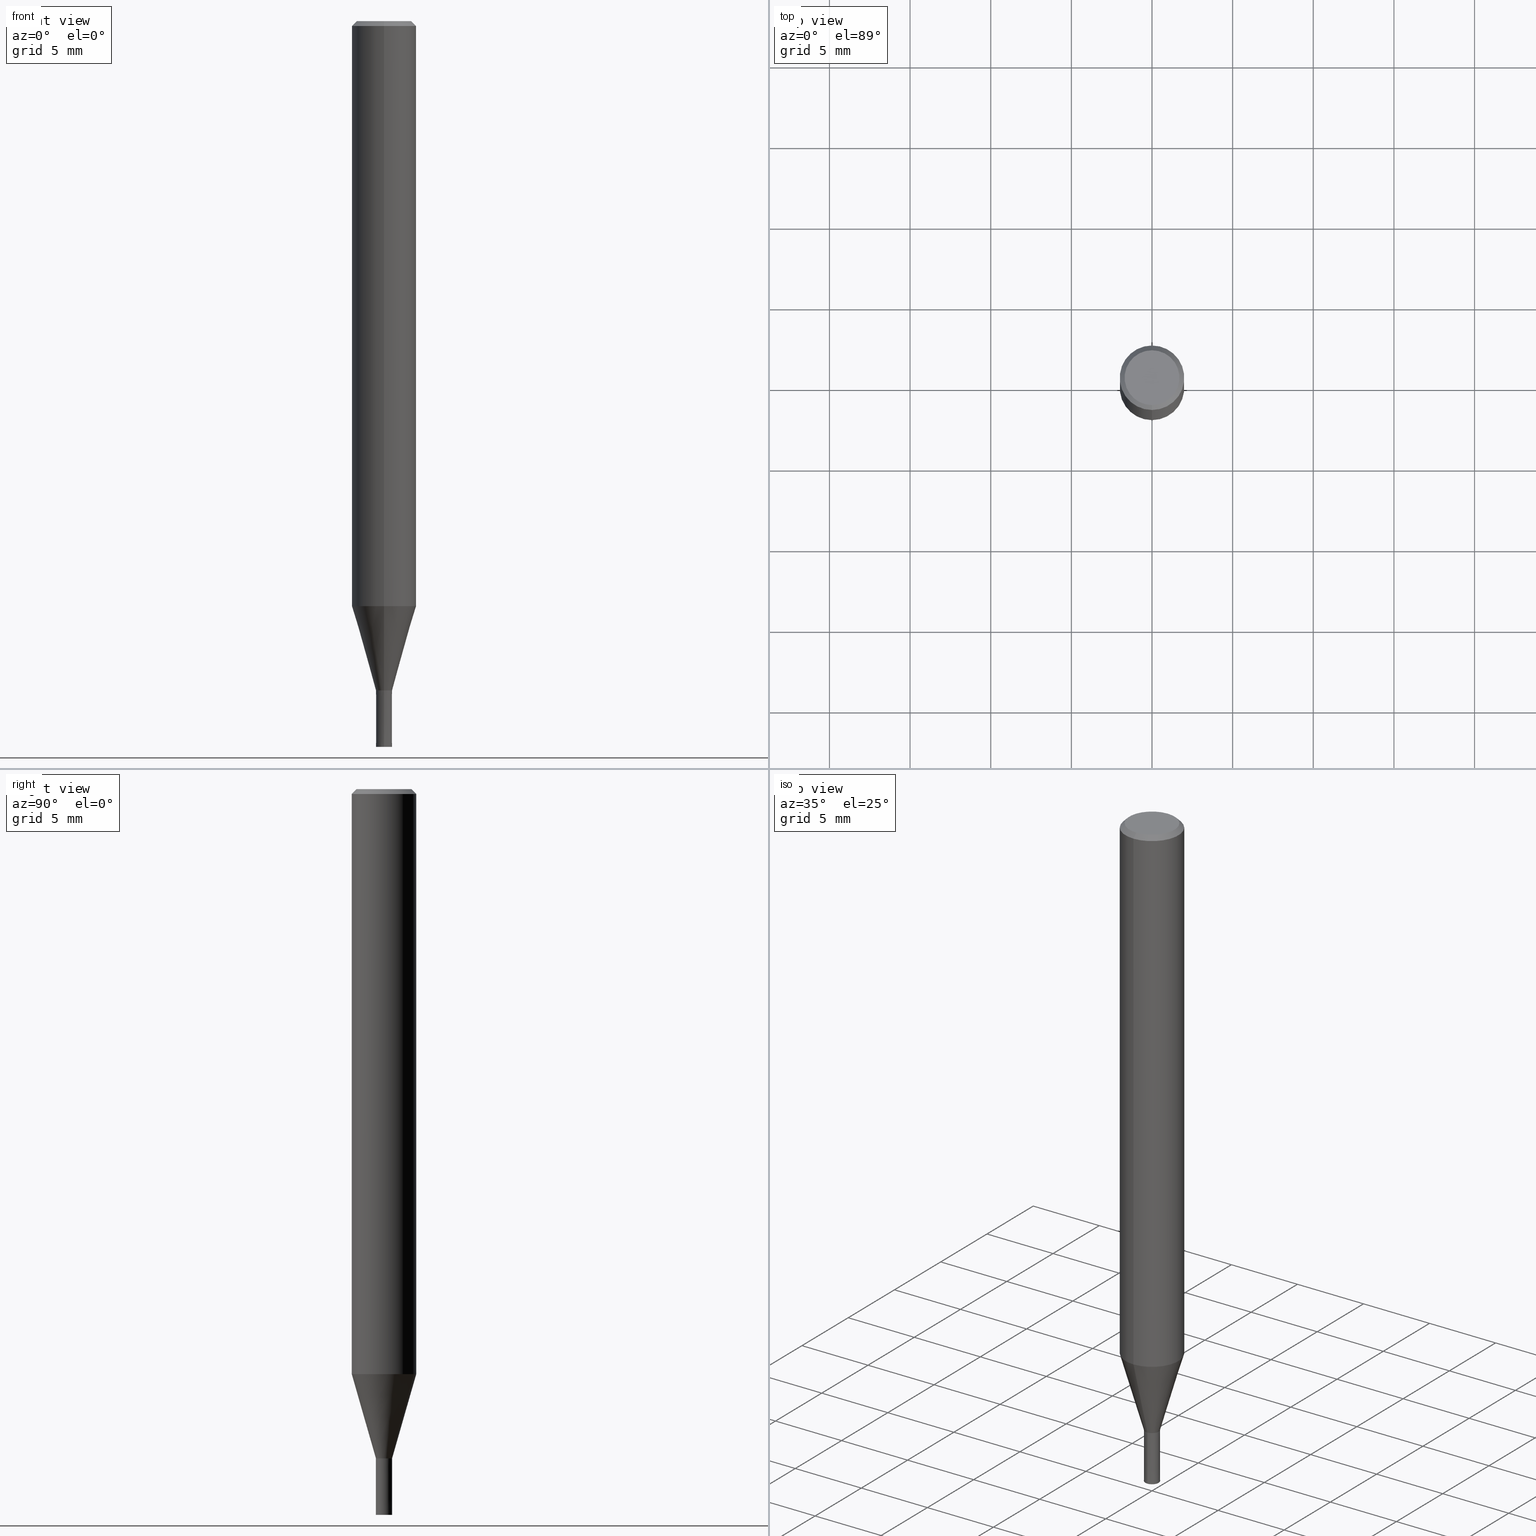
[diagram: canonical four-view strip — front | top / right | iso, engineering-drawing reading convention]
A machine part, canonical four-view strip (front | top / right | iso — engineering-drawing reading convention). The complete STEP part file that produces these views, byte-faithful:
ISO-10303-21;
HEADER;
FILE_DESCRIPTION(('no description'),'unknown implementation level');
FILE_NAME('HMS3010-0350-Huellk.stp','  ',('CIMSOURCE GmbH'),('CADClick - KiM GmbH - www.kimweb.de'),'unknown preprocess','ACIS','unknown authorization');
FILE_SCHEMA(('automotive_design'));
ENDSEC;
DATA;
#1=MECHANICAL_DESIGN_GEOMETRIC_PRESENTATION_REPRESENTATION(' ',(#14,#15,#16,#17,#18,#19,#20,#21,#22,#23,#24,#25,#26,#27,#28,#29,#30,#31,#32,#33,#34,#35,#36,#37,#38,#39,#40,#41,#42,#43,#44,#45,#46,#47,#48,#49,#50,#51,#52,#53,#54,#55,#56,#57,#58,#59,#60,#61,#62,#63,#64,#65,#66,#67,#68,#69,#70,#71,#72,#73,#74,#75,#76,#77,#78,#79,#80,#81,#82,#83,#84,#85,#86,#87,#88,#89),#10);
#2=PRODUCT_DEFINITION_CONTEXT('',#90,'design');
#3=APPLICATION_PROTOCOL_DEFINITION('INTERNATIONAL STANDARD','automotive_design',1994,#90);
#4=PRODUCT_CATEGORY_RELATIONSHIP('NONE','NONE',#91,#92);
#5=SHAPE_DEFINITION_REPRESENTATION(#93,#94);
#6=PRODUCT_DEFINITION_CONTEXT('',#95,'design');
#7=APPLICATION_PROTOCOL_DEFINITION('INTERNATIONAL STANDARD','automotive_design',1994,#95);
#8=PRODUCT_CATEGORY_RELATIONSHIP('NONE','NONE',#96,#97);
#9=SHAPE_DEFINITION_REPRESENTATION(#98,#99);
#10= (GEOMETRIC_REPRESENTATION_CONTEXT(3)GLOBAL_UNCERTAINTY_ASSIGNED_CONTEXT((#102))GLOBAL_UNIT_ASSIGNED_CONTEXT((#104,#105,#106))REPRESENTATION_CONTEXT('NONE','WORKSPACE'));
#14=STYLED_ITEM('',(#108),#109);
#15=STYLED_ITEM('',(#110),#111);
#16=STYLED_ITEM('',(#112),#113);
#17=STYLED_ITEM('',(#114),#115);
#18=STYLED_ITEM('',(#116),#117);
#19=STYLED_ITEM('',(#118),#119);
#20=STYLED_ITEM('',(#120),#121);
#21=STYLED_ITEM('',(#122),#123);
#22=STYLED_ITEM('',(#124),#125);
#23=STYLED_ITEM('',(#126),#127);
#24=STYLED_ITEM('',(#128),#129);
#25=STYLED_ITEM('',(#130),#131);
#26=STYLED_ITEM('',(#132),#133);
#27=STYLED_ITEM('',(#134),#135);
#28=STYLED_ITEM('',(#136),#137);
#29=STYLED_ITEM('',(#138),#139);
#30=STYLED_ITEM('',(#140),#141);
#31=STYLED_ITEM('',(#142),#143);
#32=STYLED_ITEM('',(#144),#145);
#33=STYLED_ITEM('',(#146),#147);
#34=STYLED_ITEM('',(#148),#149);
#35=STYLED_ITEM('',(#150),#151);
#36=STYLED_ITEM('',(#152),#153);
#37=STYLED_ITEM('',(#154),#155);
#38=STYLED_ITEM('',(#156),#157);
#39=STYLED_ITEM('',(#158),#159);
#40=STYLED_ITEM('',(#160),#161);
#41=STYLED_ITEM('',(#162),#163);
#42=STYLED_ITEM('',(#164),#165);
#43=STYLED_ITEM('',(#166),#167);
#44=STYLED_ITEM('',(#168),#169);
#45=STYLED_ITEM('',(#170),#171);
#46=STYLED_ITEM('',(#172),#173);
#47=STYLED_ITEM('',(#174),#175);
#48=STYLED_ITEM('',(#176),#177);
#49=STYLED_ITEM('',(#178),#179);
#50=STYLED_ITEM('',(#180),#181);
#51=STYLED_ITEM('',(#182),#183);
#52=STYLED_ITEM('',(#184),#185);
#53=STYLED_ITEM('',(#186),#187);
#54=STYLED_ITEM('',(#188),#189);
#55=STYLED_ITEM('',(#190),#191);
#56=STYLED_ITEM('',(#192),#193);
#57=STYLED_ITEM('',(#194),#195);
#58=STYLED_ITEM('',(#196),#197);
#59=STYLED_ITEM('',(#198),#199);
#60=STYLED_ITEM('',(#200),#201);
#61=STYLED_ITEM('',(#202),#203);
#62=STYLED_ITEM('',(#204),#205);
#63=STYLED_ITEM('',(#206),#207);
#64=STYLED_ITEM('',(#208),#209);
#65=STYLED_ITEM('',(#210),#211);
#66=STYLED_ITEM('',(#212),#213);
#67=STYLED_ITEM('',(#214),#215);
#68=STYLED_ITEM('',(#216),#217);
#69=STYLED_ITEM('',(#218),#219);
#70=STYLED_ITEM('',(#220),#221);
#71=STYLED_ITEM('',(#222),#223);
#72=STYLED_ITEM('',(#224),#225);
#73=STYLED_ITEM('',(#226),#227);
#74=STYLED_ITEM('',(#228),#229);
#75=STYLED_ITEM('',(#230),#231);
#76=STYLED_ITEM('',(#232),#233);
#77=STYLED_ITEM('',(#234),#235);
#78=STYLED_ITEM('',(#236),#237);
#79=STYLED_ITEM('',(#238),#239);
#80=STYLED_ITEM('',(#240),#241);
#81=STYLED_ITEM('',(#242),#243);
#82=STYLED_ITEM('',(#244),#245);
#83=STYLED_ITEM('',(#246),#247);
#84=STYLED_ITEM('',(#248),#249);
#85=STYLED_ITEM('',(#250),#251);
#86=STYLED_ITEM('',(#252),#253);
#87=STYLED_ITEM('',(#254),#255);
#88=STYLED_ITEM('',(#256),#257);
#89=STYLED_ITEM('',(#258),#259);
#90=APPLICATION_CONTEXT(' ');
#91=PRODUCT_CATEGORY('part','NONE');
#92=PRODUCT_RELATED_PRODUCT_CATEGORY('detail',' ',(#260));
#93=PRODUCT_DEFINITION_SHAPE('NONE','NONE',#261);
#94=ADVANCED_BREP_SHAPE_REPRESENTATION('1',(#223,#262),#10);
#95=APPLICATION_CONTEXT(' ');
#96=PRODUCT_CATEGORY('part','NONE');
#97=PRODUCT_RELATED_PRODUCT_CATEGORY('detail',' ',(#263));
#98=PRODUCT_DEFINITION_SHAPE('NONE','NONE',#264);
#99=ADVANCED_BREP_SHAPE_REPRESENTATION('2',(#237,#265),#10);
#102=UNCERTAINTY_MEASURE_WITH_UNIT(LENGTH_MEASURE(1.0E-006),#104,'','');
#104= (CONVERSION_BASED_UNIT('MILLIMETRE',#268)LENGTH_UNIT()NAMED_UNIT(#271));
#105= (NAMED_UNIT(#273)PLANE_ANGLE_UNIT()SI_UNIT($,.RADIAN.));
#106= (NAMED_UNIT(#273)SOLID_ANGLE_UNIT()SI_UNIT($,.STERADIAN.));
#108=PRESENTATION_STYLE_ASSIGNMENT((#279));
#109=EDGE_CURVE('',#143,#131,#280,.T.);
#110=PRESENTATION_STYLE_ASSIGNMENT((#281));
#111=ADVANCED_FACE('',(#282),#283,.T.);
#112=PRESENTATION_STYLE_ASSIGNMENT((#284));
#113=VERTEX_POINT('',#285);
#114=PRESENTATION_STYLE_ASSIGNMENT((#286));
#115=VERTEX_POINT('',#287);
#116=PRESENTATION_STYLE_ASSIGNMENT((#288));
#117=ADVANCED_FACE('',(#289),#290,.T.);
#118=PRESENTATION_STYLE_ASSIGNMENT((#291));
#119=VERTEX_POINT('',#292);
#120=PRESENTATION_STYLE_ASSIGNMENT((#293));
#121=VERTEX_POINT('',#294);
#122=PRESENTATION_STYLE_ASSIGNMENT((#295));
#123=VERTEX_POINT('',#296);
#124=PRESENTATION_STYLE_ASSIGNMENT((#297));
#125=EDGE_CURVE('',#145,#123,#298,.T.);
#126=PRESENTATION_STYLE_ASSIGNMENT((#299));
#127=VERTEX_POINT('',#300);
#128=PRESENTATION_STYLE_ASSIGNMENT((#301));
#129=EDGE_CURVE('',#123,#145,#302,.T.);
#130=PRESENTATION_STYLE_ASSIGNMENT((#303));
#131=VERTEX_POINT('',#304);
#132=PRESENTATION_STYLE_ASSIGNMENT((#305));
#133=ADVANCED_FACE('',(#306),#307,.F.);
#134=PRESENTATION_STYLE_ASSIGNMENT((#308));
#135=EDGE_CURVE('',#113,#153,#309,.T.);
#136=PRESENTATION_STYLE_ASSIGNMENT((#310));
#137=EDGE_CURVE('',#201,#187,#311,.T.);
#138=PRESENTATION_STYLE_ASSIGNMENT((#312));
#139=EDGE_CURVE('',#169,#157,#313,.T.);
#140=PRESENTATION_STYLE_ASSIGNMENT((#314));
#141=EDGE_CURVE('',#153,#221,#315,.T.);
#142=PRESENTATION_STYLE_ASSIGNMENT((#316));
#143=VERTEX_POINT('',#317);
#144=PRESENTATION_STYLE_ASSIGNMENT((#318));
#145=VERTEX_POINT('',#319);
#146=PRESENTATION_STYLE_ASSIGNMENT((#320));
#147=VERTEX_POINT('',#321);
#148=PRESENTATION_STYLE_ASSIGNMENT((#322));
#149=VERTEX_POINT('',#323);
#150=PRESENTATION_STYLE_ASSIGNMENT((#324));
#151=ADVANCED_FACE('',(#325),#326,.T.);
#152=PRESENTATION_STYLE_ASSIGNMENT((#327));
#153=VERTEX_POINT('',#328);
#154=PRESENTATION_STYLE_ASSIGNMENT((#329));
#155=ADVANCED_FACE('',(#330),#331,.T.);
#156=PRESENTATION_STYLE_ASSIGNMENT((#332));
#157=VERTEX_POINT('',#333);
#158=PRESENTATION_STYLE_ASSIGNMENT((#334));
#159=VERTEX_POINT('',#335);
#160=PRESENTATION_STYLE_ASSIGNMENT((#336));
#161=EDGE_CURVE('',#153,#113,#337,.T.);
#162=PRESENTATION_STYLE_ASSIGNMENT((#338));
#163=VERTEX_POINT('',#339);
#164=PRESENTATION_STYLE_ASSIGNMENT((#340));
#165=ADVANCED_FACE('',(#341),#342,.T.);
#166=PRESENTATION_STYLE_ASSIGNMENT((#343));
#167=EDGE_CURVE('',#121,#127,#344,.T.);
#168=PRESENTATION_STYLE_ASSIGNMENT((#345));
#169=VERTEX_POINT('',#346);
#170=PRESENTATION_STYLE_ASSIGNMENT((#347));
#171=EDGE_CURVE('',#159,#163,#348,.T.);
#172=PRESENTATION_STYLE_ASSIGNMENT((#349));
#173=EDGE_CURVE('',#239,#149,#350,.T.);
#174=PRESENTATION_STYLE_ASSIGNMENT((#351));
#175=ADVANCED_FACE('',(#352,#353),#354,.T.);
#176=PRESENTATION_STYLE_ASSIGNMENT((#355));
#177=EDGE_CURVE('',#119,#187,#356,.T.);
#178=PRESENTATION_STYLE_ASSIGNMENT((#357));
#179=ADVANCED_FACE('',(#358),#359,.T.);
#180=PRESENTATION_STYLE_ASSIGNMENT((#360));
#181=EDGE_CURVE('',#157,#115,#361,.T.);
#182=PRESENTATION_STYLE_ASSIGNMENT((#362));
#183=ADVANCED_FACE('',(#363),#364,.F.);
#184=PRESENTATION_STYLE_ASSIGNMENT((#365));
#185=EDGE_CURVE('',#211,#221,#366,.T.);
#186=PRESENTATION_STYLE_ASSIGNMENT((#367));
#187=VERTEX_POINT('',#368);
#188=PRESENTATION_STYLE_ASSIGNMENT((#369));
#189=ADVANCED_FACE('',(#370),#371,.T.);
#190=PRESENTATION_STYLE_ASSIGNMENT((#372));
#191=ADVANCED_FACE('',(#373,#374),#375,.T.);
#192=PRESENTATION_STYLE_ASSIGNMENT((#376));
#193=EDGE_CURVE('',#143,#149,#377,.T.);
#194=PRESENTATION_STYLE_ASSIGNMENT((#378));
#195=EDGE_CURVE('',#201,#121,#379,.T.);
#196=PRESENTATION_STYLE_ASSIGNMENT((#380));
#197=EDGE_CURVE('',#217,#115,#381,.T.);
#198=PRESENTATION_STYLE_ASSIGNMENT((#382));
#199=ADVANCED_FACE('',(#383),#384,.T.);
#200=PRESENTATION_STYLE_ASSIGNMENT((#385));
#201=VERTEX_POINT('',#386);
#202=PRESENTATION_STYLE_ASSIGNMENT((#387));
#203=EDGE_CURVE('',#221,#211,#388,.T.);
#204=PRESENTATION_STYLE_ASSIGNMENT((#389));
#205=ADVANCED_FACE('',(#390,#391),#392,.T.);
#206=PRESENTATION_STYLE_ASSIGNMENT((#393));
#207=EDGE_CURVE('',#115,#217,#394,.T.);
#208=PRESENTATION_STYLE_ASSIGNMENT((#395));
#209=EDGE_CURVE('',#145,#163,#396,.T.);
#210=PRESENTATION_STYLE_ASSIGNMENT((#397));
#211=VERTEX_POINT('',#398);
#212=PRESENTATION_STYLE_ASSIGNMENT((#399));
#213=ADVANCED_FACE('',(#400),#401,.T.);
#214=PRESENTATION_STYLE_ASSIGNMENT((#402));
#215=ADVANCED_FACE('',(#403),#404,.T.);
#216=PRESENTATION_STYLE_ASSIGNMENT((#405));
#217=VERTEX_POINT('',#406);
#218=PRESENTATION_STYLE_ASSIGNMENT((#407));
#219=ADVANCED_FACE('',(#408,#409),#410,.T.);
#220=PRESENTATION_STYLE_ASSIGNMENT((#411));
#221=VERTEX_POINT('',#412);
#222=PRESENTATION_STYLE_ASSIGNMENT((#413));
#223=MANIFOLD_SOLID_BREP('1',#414);
#224=PRESENTATION_STYLE_ASSIGNMENT((#415));
#225=EDGE_CURVE('',#239,#131,#416,.T.);
#226=PRESENTATION_STYLE_ASSIGNMENT((#417));
#227=EDGE_CURVE('',#211,#113,#418,.T.);
#228=PRESENTATION_STYLE_ASSIGNMENT((#419));
#229=EDGE_CURVE('',#217,#169,#420,.T.);
#230=PRESENTATION_STYLE_ASSIGNMENT((#421));
#231=EDGE_CURVE('',#163,#159,#422,.T.);
#232=PRESENTATION_STYLE_ASSIGNMENT((#423));
#233=EDGE_CURVE('',#147,#127,#424,.T.);
#234=PRESENTATION_STYLE_ASSIGNMENT((#425));
#235=EDGE_CURVE('',#127,#147,#426,.T.);
#236=PRESENTATION_STYLE_ASSIGNMENT((#427));
#237=MANIFOLD_SOLID_BREP('2',#428);
#238=PRESENTATION_STYLE_ASSIGNMENT((#429));
#239=VERTEX_POINT('',#430);
#240=PRESENTATION_STYLE_ASSIGNMENT((#431));
#241=EDGE_CURVE('',#121,#119,#432,.T.);
#242=PRESENTATION_STYLE_ASSIGNMENT((#433));
#243=ADVANCED_FACE('',(#434),#435,.T.);
#244=PRESENTATION_STYLE_ASSIGNMENT((#436));
#245=EDGE_CURVE('',#187,#201,#437,.T.);
#246=PRESENTATION_STYLE_ASSIGNMENT((#438));
#247=EDGE_CURVE('',#119,#121,#439,.T.);
#248=PRESENTATION_STYLE_ASSIGNMENT((#440));
#249=EDGE_CURVE('',#159,#123,#441,.T.);
#250=PRESENTATION_STYLE_ASSIGNMENT((#442));
#251=EDGE_CURVE('',#147,#119,#443,.T.);
#252=PRESENTATION_STYLE_ASSIGNMENT((#444));
#253=EDGE_CURVE('',#131,#143,#445,.T.);
#254=PRESENTATION_STYLE_ASSIGNMENT((#446));
#255=ADVANCED_FACE('',(#447),#448,.T.);
#256=PRESENTATION_STYLE_ASSIGNMENT((#449));
#257=EDGE_CURVE('',#157,#169,#450,.T.);
#258=PRESENTATION_STYLE_ASSIGNMENT((#451));
#259=EDGE_CURVE('',#149,#239,#452,.T.);
#260=PRODUCT('1','1','PART-1-DESC',(#453));
#261=PRODUCT_DEFINITION('NONE','NONE',#454,#2);
#262=AXIS2_PLACEMENT_3D('',#455,#456,#457);
#263=PRODUCT('2','2','PART-2-DESC',(#458));
#264=PRODUCT_DEFINITION('NONE','NONE',#459,#6);
#265=AXIS2_PLACEMENT_3D('',#460,#461,#462);
#268=LENGTH_MEASURE_WITH_UNIT(LENGTH_MEASURE(1.0),#463);
#271=DIMENSIONAL_EXPONENTS(1.0,0.0,0.0,0.0,0.0,0.0,0.0);
#273=DIMENSIONAL_EXPONENTS(0.0,0.0,0.0,0.0,0.0,0.0,0.0);
#279=CURVE_STYLE('',#464,POSITIVE_LENGTH_MEASURE(1.0E-006),#465);
#280=CIRCLE('',#466,0.4999);
#281=SURFACE_STYLE_USAGE(.BOTH.,#467);
#282=FACE_OUTER_BOUND('',#468,.T.);
#283=CONICAL_SURFACE('',#469,1.24995,0.279258842899557);
#284=POINT_STYLE(' ',#470,POSITIVE_LENGTH_MEASURE(1.0E-006),#471);
#285=CARTESIAN_POINT('',(2.75536429610035E-017,-0.225,-41.5));
#286=POINT_STYLE(' ',#472,POSITIVE_LENGTH_MEASURE(1.0E-006),#473);
#287=CARTESIAN_POINT('',(2.44915147732706E-016,-1.99995,-36.269));
#288=SURFACE_STYLE_USAGE(.BOTH.,#474);
#289=FACE_OUTER_BOUND('',#475,.T.);
#290=PLANE('',#476);
#291=POINT_STYLE(' ',#477,POSITIVE_LENGTH_MEASURE(1.0E-006),#478);
#292=CARTESIAN_POINT('',(0.0,2.0,-0.299999999999997));
#293=POINT_STYLE(' ',#479,POSITIVE_LENGTH_MEASURE(1.0E-006),#480);
#294=CARTESIAN_POINT('',(2.44921270764475E-016,-2.0,-0.299999999999997));
#295=POINT_STYLE(' ',#481,POSITIVE_LENGTH_MEASURE(1.0E-006),#482);
#296=CARTESIAN_POINT('',(0.0,0.225,-45.0));
#297=CURVE_STYLE('',#483,POSITIVE_LENGTH_MEASURE(1.0E-006),#484);
#298=CIRCLE('',#485,0.225);
#299=POINT_STYLE(' ',#486,POSITIVE_LENGTH_MEASURE(1.0E-006),#487);
#300=CARTESIAN_POINT('',(2.08183080149804E-016,-1.7,0.0));
#301=CURVE_STYLE('',#488,POSITIVE_LENGTH_MEASURE(1.0E-006),#489);
#302=CIRCLE('',#490,0.225);
#303=POINT_STYLE(' ',#491,POSITIVE_LENGTH_MEASURE(1.0E-006),#492);
#304=CARTESIAN_POINT('',(6.12180716275806E-017,-0.4999,-41.5));
#305=SURFACE_STYLE_USAGE(.BOTH.,#493);
#306=FACE_OUTER_BOUND('',#494,.T.);
#307=CYLINDRICAL_SURFACE('',#495,0.225);
#308=CURVE_STYLE('',#496,POSITIVE_LENGTH_MEASURE(1.0E-006),#497);
#309=CIRCLE('',#498,0.225);
#310=CURVE_STYLE('',#499,POSITIVE_LENGTH_MEASURE(1.0E-006),#500);
#311=CIRCLE('',#501,2.0);
#312=CURVE_STYLE('',#502,POSITIVE_LENGTH_MEASURE(1.0E-006),#503);
#313=CIRCLE('',#504,0.49995);
#314=CURVE_STYLE('',#505,POSITIVE_LENGTH_MEASURE(1.0E-006),#506);
#315=LINE('',#507,#508);
#316=POINT_STYLE(' ',#509,POSITIVE_LENGTH_MEASURE(1.0E-006),#510);
#317=CARTESIAN_POINT('',(0.0,0.4999,-41.5));
#318=POINT_STYLE(' ',#511,POSITIVE_LENGTH_MEASURE(1.0E-006),#512);
#319=CARTESIAN_POINT('',(2.75536429610035E-017,-0.225,-45.0));
#320=POINT_STYLE(' ',#513,POSITIVE_LENGTH_MEASURE(1.0E-006),#514);
#321=CARTESIAN_POINT('',(0.0,1.7,0.0));
#322=POINT_STYLE(' ',#515,POSITIVE_LENGTH_MEASURE(1.0E-006),#516);
#323=CARTESIAN_POINT('',(0.0,0.5,-45.0));
#324=SURFACE_STYLE_USAGE(.BOTH.,#517);
#325=FACE_OUTER_BOUND('',#518,.T.);
#326=CYLINDRICAL_SURFACE('',#519,0.225);
#327=POINT_STYLE(' ',#520,POSITIVE_LENGTH_MEASURE(1.0E-006),#521);
#328=CARTESIAN_POINT('',(0.0,0.225,-41.5));
#329=SURFACE_STYLE_USAGE(.BOTH.,#522);
#330=FACE_OUTER_BOUND('',#523,.T.);
#331=CONICAL_SURFACE('',#524,1.85,0.785398163397453);
#332=POINT_STYLE(' ',#525,POSITIVE_LENGTH_MEASURE(1.0E-006),#526);
#333=CARTESIAN_POINT('',(6.12241946593498E-017,-0.49995,-41.5));
#334=POINT_STYLE(' ',#527,POSITIVE_LENGTH_MEASURE(1.0E-006),#528);
#335=CARTESIAN_POINT('',(0.0,0.225,-41.5));
#336=CURVE_STYLE('',#529,POSITIVE_LENGTH_MEASURE(1.0E-006),#530);
#337=CIRCLE('',#531,0.225);
#338=POINT_STYLE(' ',#532,POSITIVE_LENGTH_MEASURE(1.0E-006),#533);
#339=CARTESIAN_POINT('',(2.75536429610035E-017,-0.225,-41.5));
#340=SURFACE_STYLE_USAGE(.BOTH.,#534);
#341=FACE_OUTER_BOUND('',#535,.T.);
#342=CONICAL_SURFACE('',#536,0.49995,2.85714285636509E-005);
#343=CURVE_STYLE('',#537,POSITIVE_LENGTH_MEASURE(1.0E-006),#538);
#344=LINE('',#539,#540);
#345=POINT_STYLE(' ',#541,POSITIVE_LENGTH_MEASURE(1.0E-006),#542);
#346=CARTESIAN_POINT('',(0.0,0.49995,-41.5));
#347=CURVE_STYLE('',#543,POSITIVE_LENGTH_MEASURE(1.0E-006),#544);
#348=CIRCLE('',#545,0.225);
#349=CURVE_STYLE('',#546,POSITIVE_LENGTH_MEASURE(1.0E-006),#547);
#350=CIRCLE('',#548,0.5);
#351=SURFACE_STYLE_USAGE(.BOTH.,#549);
#352=FACE_OUTER_BOUND('',#550,.T.);
#353=FACE_BOUND('',#551,.T.);
#354=PLANE('',#552);
#355=CURVE_STYLE('',#553,POSITIVE_LENGTH_MEASURE(1.0E-006),#554);
#356=LINE('',#555,#556);
#357=SURFACE_STYLE_USAGE(.BOTH.,#557);
#358=FACE_OUTER_BOUND('',#558,.T.);
#359=CYLINDRICAL_SURFACE('',#559,2.0);
#360=CURVE_STYLE('',#560,POSITIVE_LENGTH_MEASURE(1.0E-006),#561);
#361=LINE('',#562,#563);
#362=SURFACE_STYLE_USAGE(.BOTH.,#564);
#363=FACE_OUTER_BOUND('',#565,.T.);
#364=CYLINDRICAL_SURFACE('',#566,0.225);
#365=CURVE_STYLE('',#567,POSITIVE_LENGTH_MEASURE(1.0E-006),#568);
#366=CIRCLE('',#569,0.225);
#367=POINT_STYLE(' ',#570,POSITIVE_LENGTH_MEASURE(1.0E-006),#571);
#368=CARTESIAN_POINT('',(0.0,2.0,-36.269));
#369=SURFACE_STYLE_USAGE(.BOTH.,#572);
#370=FACE_OUTER_BOUND('',#573,.T.);
#371=CONICAL_SURFACE('',#574,0.49995,2.85714285636509E-005);
#372=SURFACE_STYLE_USAGE(.BOTH.,#575);
#373=FACE_OUTER_BOUND('',#576,.T.);
#374=FACE_BOUND('',#577,.T.);
#375=PLANE('',#578);
#376=CURVE_STYLE('',#579,POSITIVE_LENGTH_MEASURE(1.0E-006),#580);
#377=LINE('',#581,#582);
#378=CURVE_STYLE('',#583,POSITIVE_LENGTH_MEASURE(1.0E-006),#584);
#379=LINE('',#585,#586);
#380=CURVE_STYLE('',#587,POSITIVE_LENGTH_MEASURE(1.0E-006),#588);
#381=CIRCLE('',#589,1.99995);
#382=SURFACE_STYLE_USAGE(.BOTH.,#590);
#383=FACE_OUTER_BOUND('',#591,.T.);
#384=CYLINDRICAL_SURFACE('',#592,2.0);
#385=POINT_STYLE(' ',#593,POSITIVE_LENGTH_MEASURE(1.0E-006),#594);
#386=CARTESIAN_POINT('',(2.44921270764475E-016,-2.0,-36.269));
#387=CURVE_STYLE('',#595,POSITIVE_LENGTH_MEASURE(1.0E-006),#596);
#388=CIRCLE('',#597,0.225);
#389=SURFACE_STYLE_USAGE(.BOTH.,#598);
#390=FACE_OUTER_BOUND('',#599,.T.);
#391=FACE_BOUND('',#600,.T.);
#392=PLANE('',#601);
#393=CURVE_STYLE('',#602,POSITIVE_LENGTH_MEASURE(1.0E-006),#603);
#394=CIRCLE('',#604,1.99995);
#395=CURVE_STYLE('',#605,POSITIVE_LENGTH_MEASURE(1.0E-006),#606);
#396=LINE('',#607,#608);
#397=POINT_STYLE(' ',#609,POSITIVE_LENGTH_MEASURE(1.0E-006),#610);
#398=CARTESIAN_POINT('',(2.75536429610035E-017,-0.225,-44.9));
#399=SURFACE_STYLE_USAGE(.BOTH.,#611);
#400=FACE_OUTER_BOUND('',#612,.T.);
#401=CONICAL_SURFACE('',#613,1.24995,0.279258842899557);
#402=SURFACE_STYLE_USAGE(.BOTH.,#614);
#403=FACE_OUTER_BOUND('',#615,.T.);
#404=CONICAL_SURFACE('',#616,1.85,0.785398163397453);
#405=POINT_STYLE(' ',#617,POSITIVE_LENGTH_MEASURE(1.0E-006),#618);
#406=CARTESIAN_POINT('',(0.0,1.99995,-36.269));
#407=SURFACE_STYLE_USAGE(.BOTH.,#619);
#408=FACE_BOUND('',#620,.T.);
#409=FACE_OUTER_BOUND('',#621,.T.);
#410=PLANE('',#622);
#411=POINT_STYLE(' ',#623,POSITIVE_LENGTH_MEASURE(1.0E-006),#624);
#412=CARTESIAN_POINT('',(0.0,0.225,-44.9));
#413=SURFACE_STYLE_USAGE(.BOTH.,#625);
#414=CLOSED_SHELL('',(#151,#213,#179,#155,#175,#117,#215,#199,#111,#219,#255,#243));
#415=CURVE_STYLE('',#626,POSITIVE_LENGTH_MEASURE(1.0E-006),#627);
#416=LINE('',#628,#629);
#417=CURVE_STYLE('',#630,POSITIVE_LENGTH_MEASURE(1.0E-006),#631);
#418=LINE('',#632,#633);
#419=CURVE_STYLE('',#634,POSITIVE_LENGTH_MEASURE(1.0E-006),#635);
#420=LINE('',#636,#637);
#421=CURVE_STYLE('',#638,POSITIVE_LENGTH_MEASURE(1.0E-006),#639);
#422=CIRCLE('',#640,0.225);
#423=CURVE_STYLE('',#641,POSITIVE_LENGTH_MEASURE(1.0E-006),#642);
#424=CIRCLE('',#643,1.7);
#425=CURVE_STYLE('',#644,POSITIVE_LENGTH_MEASURE(1.0E-006),#645);
#426=CIRCLE('',#646,1.7);
#427=SURFACE_STYLE_USAGE(.BOTH.,#647);
#428=CLOSED_SHELL('',(#183,#189,#191,#165,#205,#133));
#429=POINT_STYLE(' ',#648,POSITIVE_LENGTH_MEASURE(1.0E-006),#649);
#430=CARTESIAN_POINT('',(6.12303176911189E-017,-0.5,-45.0));
#431=CURVE_STYLE('',#650,POSITIVE_LENGTH_MEASURE(1.0E-006),#651);
#432=CIRCLE('',#652,2.0);
#433=SURFACE_STYLE_USAGE(.BOTH.,#653);
#434=FACE_OUTER_BOUND('',#654,.T.);
#435=PLANE('',#655);
#436=CURVE_STYLE('',#656,POSITIVE_LENGTH_MEASURE(1.0E-006),#657);
#437=CIRCLE('',#658,2.0);
#438=CURVE_STYLE('',#659,POSITIVE_LENGTH_MEASURE(1.0E-006),#660);
#439=CIRCLE('',#661,2.0);
#440=CURVE_STYLE('',#662,POSITIVE_LENGTH_MEASURE(1.0E-006),#663);
#441=LINE('',#664,#665);
#442=CURVE_STYLE('',#666,POSITIVE_LENGTH_MEASURE(1.0E-006),#667);
#443=LINE('',#668,#669);
#444=CURVE_STYLE('',#670,POSITIVE_LENGTH_MEASURE(1.0E-006),#671);
#445=CIRCLE('',#672,0.4999);
#446=SURFACE_STYLE_USAGE(.BOTH.,#673);
#447=FACE_OUTER_BOUND('',#674,.T.);
#448=CYLINDRICAL_SURFACE('',#675,0.225);
#449=CURVE_STYLE('',#676,POSITIVE_LENGTH_MEASURE(1.0E-006),#677);
#450=CIRCLE('',#678,0.49995);
#451=CURVE_STYLE('',#679,POSITIVE_LENGTH_MEASURE(1.0E-006),#680);
#452=CIRCLE('',#681,0.5);
#453=PRODUCT_CONTEXT('',#90,'mechanical');
#454=PRODUCT_DEFINITION_FORMATION_WITH_SPECIFIED_SOURCE(' ','NONE',#260,.NOT_KNOWN.);
#455=CARTESIAN_POINT('',(0.0,0.0,0.0));
#456=DIRECTION('',(0.0,0.0,1.0));
#457=DIRECTION('',(1.0,0.0,0.0));
#458=PRODUCT_CONTEXT('',#95,'mechanical');
#459=PRODUCT_DEFINITION_FORMATION_WITH_SPECIFIED_SOURCE(' ','NONE',#263,.NOT_KNOWN.);
#460=CARTESIAN_POINT('',(0.0,0.0,0.0));
#461=DIRECTION('',(0.0,0.0,1.0));
#462=DIRECTION('',(1.0,0.0,0.0));
#463= (NAMED_UNIT(#271)LENGTH_UNIT()SI_UNIT(.MILLI.,.METRE.));
#464=DRAUGHTING_PRE_DEFINED_CURVE_FONT('continuous');
#465=COLOUR_RGB('',0.800000011920929,0.800000011920929,0.800000011920929);
#466=AXIS2_PLACEMENT_3D('',#683,#684,#685);
#467=SURFACE_SIDE_STYLE('',(#686));
#468=EDGE_LOOP('',(#687,#688,#689,#690));
#469=AXIS2_PLACEMENT_3D('',#691,#692,#693);
#470=PRE_DEFINED_MARKER('');
#471=COLOUR_RGB('',0.498039215803146,0.498039215803146,0.498039215803146);
#472=PRE_DEFINED_MARKER('');
#473=COLOUR_RGB('',0.498039215803146,0.498039215803146,0.498039215803146);
#474=SURFACE_SIDE_STYLE('',(#694));
#475=EDGE_LOOP('',(#695,#696));
#476=AXIS2_PLACEMENT_3D('',#697,#698,#699);
#477=PRE_DEFINED_MARKER('');
#478=COLOUR_RGB('',0.498039215803146,0.498039215803146,0.498039215803146);
#479=PRE_DEFINED_MARKER('');
#480=COLOUR_RGB('',0.498039215803146,0.498039215803146,0.498039215803146);
#481=PRE_DEFINED_MARKER('');
#482=COLOUR_RGB('',0.800000011920929,0.800000011920929,0.800000011920929);
#483=DRAUGHTING_PRE_DEFINED_CURVE_FONT('continuous');
#484=COLOUR_RGB('',0.800000011920929,0.800000011920929,0.800000011920929);
#485=AXIS2_PLACEMENT_3D('',#700,#701,#702);
#486=PRE_DEFINED_MARKER('');
#487=COLOUR_RGB('',0.498039215803146,0.498039215803146,0.498039215803146);
#488=DRAUGHTING_PRE_DEFINED_CURVE_FONT('continuous');
#489=COLOUR_RGB('',0.800000011920929,0.800000011920929,0.800000011920929);
#490=AXIS2_PLACEMENT_3D('',#703,#704,#705);
#491=PRE_DEFINED_MARKER('');
#492=COLOUR_RGB('',0.800000011920929,0.800000011920929,0.800000011920929);
#493=SURFACE_SIDE_STYLE('',(#706));
#494=EDGE_LOOP('',(#707,#708,#709,#710));
#495=AXIS2_PLACEMENT_3D('',#711,#712,#713);
#496=DRAUGHTING_PRE_DEFINED_CURVE_FONT('continuous');
#497=COLOUR_RGB('',0.498039215803146,0.498039215803146,0.498039215803146);
#498=AXIS2_PLACEMENT_3D('',#714,#715,#716);
#499=DRAUGHTING_PRE_DEFINED_CURVE_FONT('continuous');
#500=COLOUR_RGB('',0.498039215803146,0.498039215803146,0.498039215803146);
#501=AXIS2_PLACEMENT_3D('',#717,#718,#719);
#502=DRAUGHTING_PRE_DEFINED_CURVE_FONT('continuous');
#503=COLOUR_RGB('',0.498039215803146,0.498039215803146,0.498039215803146);
#504=AXIS2_PLACEMENT_3D('',#720,#721,#722);
#505=DRAUGHTING_PRE_DEFINED_CURVE_FONT('continuous');
#506=COLOUR_RGB('',0.498039215803146,0.498039215803146,0.498039215803146);
#507=CARTESIAN_POINT('',(-2.75536429610035E-017,0.225,-43.2));
#508=VECTOR('',#723,1.0);
#509=PRE_DEFINED_MARKER('');
#510=COLOUR_RGB('',0.800000011920929,0.800000011920929,0.800000011920929);
#511=PRE_DEFINED_MARKER('');
#512=COLOUR_RGB('',0.800000011920929,0.800000011920929,0.800000011920929);
#513=PRE_DEFINED_MARKER('');
#514=COLOUR_RGB('',0.498039215803146,0.498039215803146,0.498039215803146);
#515=PRE_DEFINED_MARKER('');
#516=COLOUR_RGB('',0.800000011920929,0.800000011920929,0.800000011920929);
#517=SURFACE_SIDE_STYLE('',(#724));
#518=EDGE_LOOP('',(#725,#726,#727,#728));
#519=AXIS2_PLACEMENT_3D('',#729,#730,#731);
#520=PRE_DEFINED_MARKER('');
#521=COLOUR_RGB('',0.498039215803146,0.498039215803146,0.498039215803146);
#522=SURFACE_SIDE_STYLE('',(#732));
#523=EDGE_LOOP('',(#733,#734,#735,#736));
#524=AXIS2_PLACEMENT_3D('',#737,#738,#739);
#525=PRE_DEFINED_MARKER('');
#526=COLOUR_RGB('',0.498039215803146,0.498039215803146,0.498039215803146);
#527=PRE_DEFINED_MARKER('');
#528=COLOUR_RGB('',0.800000011920929,0.800000011920929,0.800000011920929);
#529=DRAUGHTING_PRE_DEFINED_CURVE_FONT('continuous');
#530=COLOUR_RGB('',0.498039215803146,0.498039215803146,0.498039215803146);
#531=AXIS2_PLACEMENT_3D('',#740,#741,#742);
#532=PRE_DEFINED_MARKER('');
#533=COLOUR_RGB('',0.800000011920929,0.800000011920929,0.800000011920929);
#534=SURFACE_SIDE_STYLE('',(#743));
#535=EDGE_LOOP('',(#744,#745,#746,#747));
#536=AXIS2_PLACEMENT_3D('',#748,#749,#750);
#537=DRAUGHTING_PRE_DEFINED_CURVE_FONT('continuous');
#538=COLOUR_RGB('',0.498039215803146,0.498039215803146,0.498039215803146);
#539=CARTESIAN_POINT('',(2.2655217545714E-016,-1.85,-0.149999999999999));
#540=VECTOR('',#751,1.0);
#541=PRE_DEFINED_MARKER('');
#542=COLOUR_RGB('',0.498039215803146,0.498039215803146,0.498039215803146);
#543=DRAUGHTING_PRE_DEFINED_CURVE_FONT('continuous');
#544=COLOUR_RGB('',0.800000011920929,0.800000011920929,0.800000011920929);
#545=AXIS2_PLACEMENT_3D('',#752,#753,#754);
#546=DRAUGHTING_PRE_DEFINED_CURVE_FONT('continuous');
#547=COLOUR_RGB('',0.800000011920929,0.800000011920929,0.800000011920929);
#548=AXIS2_PLACEMENT_3D('',#755,#756,#757);
#549=SURFACE_SIDE_STYLE('',(#758));
#550=EDGE_LOOP('',(#759,#760));
#551=EDGE_LOOP('',(#761,#762));
#552=AXIS2_PLACEMENT_3D('',#763,#764,#765);
#553=DRAUGHTING_PRE_DEFINED_CURVE_FONT('continuous');
#554=COLOUR_RGB('',0.498039215803146,0.498039215803146,0.498039215803146);
#555=CARTESIAN_POINT('',(-2.44921270764475E-016,2.0,-18.2845));
#556=VECTOR('',#766,1.0);
#557=SURFACE_SIDE_STYLE('',(#767));
#558=EDGE_LOOP('',(#768,#769,#770,#771));
#559=AXIS2_PLACEMENT_3D('',#772,#773,#774);
#560=DRAUGHTING_PRE_DEFINED_CURVE_FONT('continuous');
#561=COLOUR_RGB('',0.498039215803146,0.498039215803146,0.498039215803146);
#562=CARTESIAN_POINT('',(1.53069671196028E-016,-1.24995,-38.8845));
#563=VECTOR('',#775,1.0);
#564=SURFACE_SIDE_STYLE('',(#776));
#565=EDGE_LOOP('',(#777,#778,#779,#780));
#566=AXIS2_PLACEMENT_3D('',#781,#782,#783);
#567=DRAUGHTING_PRE_DEFINED_CURVE_FONT('continuous');
#568=COLOUR_RGB('',0.498039215803146,0.498039215803146,0.498039215803146);
#569=AXIS2_PLACEMENT_3D('',#784,#785,#786);
#570=PRE_DEFINED_MARKER('');
#571=COLOUR_RGB('',0.498039215803146,0.498039215803146,0.498039215803146);
#572=SURFACE_SIDE_STYLE('',(#787));
#573=EDGE_LOOP('',(#788,#789,#790,#791));
#574=AXIS2_PLACEMENT_3D('',#792,#793,#794);
#575=SURFACE_SIDE_STYLE('',(#795));
#576=EDGE_LOOP('',(#796,#797));
#577=EDGE_LOOP('',(#798,#799));
#578=AXIS2_PLACEMENT_3D('',#800,#801,#802);
#579=DRAUGHTING_PRE_DEFINED_CURVE_FONT('continuous');
#580=COLOUR_RGB('',0.800000011920929,0.800000011920929,0.800000011920929);
#581=CARTESIAN_POINT('',(-6.12241946593498E-017,0.49995,-43.25));
#582=VECTOR('',#803,1.0);
#583=DRAUGHTING_PRE_DEFINED_CURVE_FONT('continuous');
#584=COLOUR_RGB('',0.498039215803146,0.498039215803146,0.498039215803146);
#585=CARTESIAN_POINT('',(2.44921270764475E-016,-2.0,-18.2845));
#586=VECTOR('',#804,1.0);
#587=DRAUGHTING_PRE_DEFINED_CURVE_FONT('continuous');
#588=COLOUR_RGB('',0.498039215803146,0.498039215803146,0.498039215803146);
#589=AXIS2_PLACEMENT_3D('',#805,#806,#807);
#590=SURFACE_SIDE_STYLE('',(#808));
#591=EDGE_LOOP('',(#809,#810,#811,#812));
#592=AXIS2_PLACEMENT_3D('',#813,#814,#815);
#593=PRE_DEFINED_MARKER('');
#594=COLOUR_RGB('',0.498039215803146,0.498039215803146,0.498039215803146);
#595=DRAUGHTING_PRE_DEFINED_CURVE_FONT('continuous');
#596=COLOUR_RGB('',0.498039215803146,0.498039215803146,0.498039215803146);
#597=AXIS2_PLACEMENT_3D('',#816,#817,#818);
#598=SURFACE_SIDE_STYLE('',(#819));
#599=EDGE_LOOP('',(#820,#821));
#600=EDGE_LOOP('',(#822,#823));
#601=AXIS2_PLACEMENT_3D('',#824,#825,#826);
#602=DRAUGHTING_PRE_DEFINED_CURVE_FONT('continuous');
#603=COLOUR_RGB('',0.498039215803146,0.498039215803146,0.498039215803146);
#604=AXIS2_PLACEMENT_3D('',#827,#828,#829);
#605=DRAUGHTING_PRE_DEFINED_CURVE_FONT('continuous');
#606=COLOUR_RGB('',0.800000011920929,0.800000011920929,0.800000011920929);
#607=CARTESIAN_POINT('',(2.75536429610035E-017,-0.225,-43.25));
#608=VECTOR('',#830,1.0);
#609=PRE_DEFINED_MARKER('');
#610=COLOUR_RGB('',0.498039215803146,0.498039215803146,0.498039215803146);
#611=SURFACE_SIDE_STYLE('',(#831));
#612=EDGE_LOOP('',(#832,#833,#834,#835));
#613=AXIS2_PLACEMENT_3D('',#836,#837,#838);
#614=SURFACE_SIDE_STYLE('',(#839));
#615=EDGE_LOOP('',(#840,#841,#842,#843));
#616=AXIS2_PLACEMENT_3D('',#844,#845,#846);
#617=PRE_DEFINED_MARKER('');
#618=COLOUR_RGB('',0.498039215803146,0.498039215803146,0.498039215803146);
#619=SURFACE_SIDE_STYLE('',(#847));
#620=EDGE_LOOP('',(#848,#849));
#621=EDGE_LOOP('',(#850,#851));
#622=AXIS2_PLACEMENT_3D('',#852,#853,#854);
#623=PRE_DEFINED_MARKER('');
#624=COLOUR_RGB('',0.498039215803146,0.498039215803146,0.498039215803146);
#625=SURFACE_SIDE_STYLE('',(#855));
#626=DRAUGHTING_PRE_DEFINED_CURVE_FONT('continuous');
#627=COLOUR_RGB('',0.800000011920929,0.800000011920929,0.800000011920929);
#628=CARTESIAN_POINT('',(6.12241946593498E-017,-0.49995,-43.25));
#629=VECTOR('',#856,1.0);
#630=DRAUGHTING_PRE_DEFINED_CURVE_FONT('continuous');
#631=COLOUR_RGB('',0.498039215803146,0.498039215803146,0.498039215803146);
#632=CARTESIAN_POINT('',(2.75536429610035E-017,-0.225,-43.2));
#633=VECTOR('',#857,1.0);
#634=DRAUGHTING_PRE_DEFINED_CURVE_FONT('continuous');
#635=COLOUR_RGB('',0.498039215803146,0.498039215803146,0.498039215803146);
#636=CARTESIAN_POINT('',(-1.53069671196028E-016,1.24995,-38.8845));
#637=VECTOR('',#858,1.0);
#638=DRAUGHTING_PRE_DEFINED_CURVE_FONT('continuous');
#639=COLOUR_RGB('',0.800000011920929,0.800000011920929,0.800000011920929);
#640=AXIS2_PLACEMENT_3D('',#859,#860,#861);
#641=DRAUGHTING_PRE_DEFINED_CURVE_FONT('continuous');
#642=COLOUR_RGB('',0.498039215803146,0.498039215803146,0.498039215803146);
#643=AXIS2_PLACEMENT_3D('',#862,#863,#864);
#644=DRAUGHTING_PRE_DEFINED_CURVE_FONT('continuous');
#645=COLOUR_RGB('',0.498039215803146,0.498039215803146,0.498039215803146);
#646=AXIS2_PLACEMENT_3D('',#865,#866,#867);
#647=SURFACE_SIDE_STYLE('',(#868));
#648=PRE_DEFINED_MARKER('');
#649=COLOUR_RGB('',0.800000011920929,0.800000011920929,0.800000011920929);
#650=DRAUGHTING_PRE_DEFINED_CURVE_FONT('continuous');
#651=COLOUR_RGB('',0.498039215803146,0.498039215803146,0.498039215803146);
#652=AXIS2_PLACEMENT_3D('',#869,#870,#871);
#653=SURFACE_SIDE_STYLE('',(#872));
#654=EDGE_LOOP('',(#873,#874));
#655=AXIS2_PLACEMENT_3D('',#875,#876,#877);
#656=DRAUGHTING_PRE_DEFINED_CURVE_FONT('continuous');
#657=COLOUR_RGB('',0.498039215803146,0.498039215803146,0.498039215803146);
#658=AXIS2_PLACEMENT_3D('',#878,#879,#880);
#659=DRAUGHTING_PRE_DEFINED_CURVE_FONT('continuous');
#660=COLOUR_RGB('',0.498039215803146,0.498039215803146,0.498039215803146);
#661=AXIS2_PLACEMENT_3D('',#881,#882,#883);
#662=DRAUGHTING_PRE_DEFINED_CURVE_FONT('continuous');
#663=COLOUR_RGB('',0.800000011920929,0.800000011920929,0.800000011920929);
#664=CARTESIAN_POINT('',(-2.75536429610035E-017,0.225,-43.25));
#665=VECTOR('',#884,1.0);
#666=DRAUGHTING_PRE_DEFINED_CURVE_FONT('continuous');
#667=COLOUR_RGB('',0.498039215803146,0.498039215803146,0.498039215803146);
#668=CARTESIAN_POINT('',(-2.2655217545714E-016,1.85,-0.149999999999999));
#669=VECTOR('',#885,1.0);
#670=DRAUGHTING_PRE_DEFINED_CURVE_FONT('continuous');
#671=COLOUR_RGB('',0.800000011920929,0.800000011920929,0.800000011920929);
#672=AXIS2_PLACEMENT_3D('',#886,#887,#888);
#673=SURFACE_SIDE_STYLE('',(#889));
#674=EDGE_LOOP('',(#890,#891,#892,#893));
#675=AXIS2_PLACEMENT_3D('',#894,#895,#896);
#676=DRAUGHTING_PRE_DEFINED_CURVE_FONT('continuous');
#677=COLOUR_RGB('',0.498039215803146,0.498039215803146,0.498039215803146);
#678=AXIS2_PLACEMENT_3D('',#897,#898,#899);
#679=DRAUGHTING_PRE_DEFINED_CURVE_FONT('continuous');
#680=COLOUR_RGB('',0.800000011920929,0.800000011920929,0.800000011920929);
#681=AXIS2_PLACEMENT_3D('',#900,#901,#902);
#683=CARTESIAN_POINT('',(0.0,0.0,-41.5));
#684=DIRECTION('',(0.0,0.0,-1.0));
#685=DIRECTION('',(0.0,1.0,0.0));
#686=SURFACE_STYLE_FILL_AREA(#903);
#687=ORIENTED_EDGE('',*,*,#229,.T.);
#688=ORIENTED_EDGE('',*,*,#257,.F.);
#689=ORIENTED_EDGE('',*,*,#181,.T.);
#690=ORIENTED_EDGE('',*,*,#207,.T.);
#691=CARTESIAN_POINT('',(0.0,0.0,-38.8845));
#692=DIRECTION('',(-0.0,-0.0,1.0));
#693=DIRECTION('',(0.0,1.0,0.0));
#694=SURFACE_STYLE_FILL_AREA(#904);
#695=ORIENTED_EDGE('',*,*,#233,.F.);
#696=ORIENTED_EDGE('',*,*,#235,.F.);
#697=CARTESIAN_POINT('',(0.0,0.85,0.0));
#698=DIRECTION('',(-0.0,0.0,1.0));
#699=DIRECTION('',(0.0,-1.0,0.0));
#700=CARTESIAN_POINT('',(0.0,0.0,-45.0));
#701=DIRECTION('',(0.0,0.0,-1.0));
#702=DIRECTION('',(0.0,1.0,0.0));
#703=CARTESIAN_POINT('',(0.0,0.0,-45.0));
#704=DIRECTION('',(0.0,0.0,-1.0));
#705=DIRECTION('',(0.0,1.0,0.0));
#706=SURFACE_STYLE_FILL_AREA(#905);
#707=ORIENTED_EDGE('',*,*,#249,.T.);
#708=ORIENTED_EDGE('',*,*,#129,.T.);
#709=ORIENTED_EDGE('',*,*,#209,.T.);
#710=ORIENTED_EDGE('',*,*,#171,.F.);
#711=CARTESIAN_POINT('',(0.0,0.0,-43.25));
#712=DIRECTION('',(-0.0,-0.0,1.0));
#713=DIRECTION('',(0.0,1.0,0.0));
#714=CARTESIAN_POINT('',(0.0,0.0,-41.5));
#715=DIRECTION('',(0.0,0.0,-1.0));
#716=DIRECTION('',(0.0,1.0,0.0));
#717=CARTESIAN_POINT('',(0.0,0.0,-36.269));
#718=DIRECTION('',(0.0,0.0,-1.0));
#719=DIRECTION('',(0.0,1.0,0.0));
#720=CARTESIAN_POINT('',(0.0,0.0,-41.5));
#721=DIRECTION('',(0.0,0.0,-1.0));
#722=DIRECTION('',(0.0,1.0,0.0));
#723=DIRECTION('',(0.0,0.0,-1.0));
#724=SURFACE_STYLE_FILL_AREA(#906);
#725=ORIENTED_EDGE('',*,*,#141,.F.);
#726=ORIENTED_EDGE('',*,*,#161,.T.);
#727=ORIENTED_EDGE('',*,*,#227,.F.);
#728=ORIENTED_EDGE('',*,*,#203,.F.);
#729=CARTESIAN_POINT('',(0.0,0.0,-43.2));
#730=DIRECTION('',(-0.0,-0.0,1.0));
#731=DIRECTION('',(0.0,1.0,0.0));
#732=SURFACE_STYLE_FILL_AREA(#907);
#733=ORIENTED_EDGE('',*,*,#251,.F.);
#734=ORIENTED_EDGE('',*,*,#233,.T.);
#735=ORIENTED_EDGE('',*,*,#167,.F.);
#736=ORIENTED_EDGE('',*,*,#247,.F.);
#737=CARTESIAN_POINT('',(0.0,0.0,-0.149999999999999));
#738=DIRECTION('',(0.0,-0.0,-1.0));
#739=DIRECTION('',(0.0,1.0,0.0));
#740=CARTESIAN_POINT('',(0.0,0.0,-41.5));
#741=DIRECTION('',(0.0,0.0,-1.0));
#742=DIRECTION('',(0.0,1.0,0.0));
#743=SURFACE_STYLE_FILL_AREA(#908);
#744=ORIENTED_EDGE('',*,*,#193,.T.);
#745=ORIENTED_EDGE('',*,*,#173,.F.);
#746=ORIENTED_EDGE('',*,*,#225,.T.);
#747=ORIENTED_EDGE('',*,*,#253,.T.);
#748=CARTESIAN_POINT('',(0.0,0.0,-43.25));
#749=DIRECTION('',(0.0,-0.0,-1.0));
#750=DIRECTION('',(0.0,1.0,0.0));
#751=DIRECTION('',(-8.6592745707194E-017,0.707106781186551,0.707106781186544));
#752=CARTESIAN_POINT('',(0.0,0.0,-41.5));
#753=DIRECTION('',(0.0,0.0,-1.0));
#754=DIRECTION('',(0.0,1.0,0.0));
#755=CARTESIAN_POINT('',(0.0,0.0,-45.0));
#756=DIRECTION('',(0.0,0.0,-1.0));
#757=DIRECTION('',(0.0,1.0,0.0));
#758=SURFACE_STYLE_FILL_AREA(#909);
#759=ORIENTED_EDGE('',*,*,#245,.T.);
#760=ORIENTED_EDGE('',*,*,#137,.T.);
#761=ORIENTED_EDGE('',*,*,#197,.F.);
#762=ORIENTED_EDGE('',*,*,#207,.F.);
#763=CARTESIAN_POINT('',(0.0,1.0,-36.269));
#764=DIRECTION('',(0.0,0.0,-1.0));
#765=DIRECTION('',(0.0,1.0,0.0));
#766=DIRECTION('',(0.0,0.0,-1.0));
#767=SURFACE_STYLE_FILL_AREA(#910);
#768=ORIENTED_EDGE('',*,*,#177,.F.);
#769=ORIENTED_EDGE('',*,*,#247,.T.);
#770=ORIENTED_EDGE('',*,*,#195,.F.);
#771=ORIENTED_EDGE('',*,*,#245,.F.);
#772=CARTESIAN_POINT('',(0.0,0.0,-18.2845));
#773=DIRECTION('',(-0.0,-0.0,1.0));
#774=DIRECTION('',(0.0,1.0,0.0));
#775=DIRECTION('',(3.37554511665357E-017,-0.275643279664314,0.961259997282682));
#776=SURFACE_STYLE_FILL_AREA(#911);
#777=ORIENTED_EDGE('',*,*,#249,.F.);
#778=ORIENTED_EDGE('',*,*,#231,.F.);
#779=ORIENTED_EDGE('',*,*,#209,.F.);
#780=ORIENTED_EDGE('',*,*,#125,.T.);
#781=CARTESIAN_POINT('',(0.0,0.0,-43.25));
#782=DIRECTION('',(-0.0,-0.0,1.0));
#783=DIRECTION('',(0.0,1.0,0.0));
#784=CARTESIAN_POINT('',(0.0,0.0,-44.9));
#785=DIRECTION('',(0.0,0.0,-1.0));
#786=DIRECTION('',(0.0,1.0,0.0));
#787=SURFACE_STYLE_FILL_AREA(#912);
#788=ORIENTED_EDGE('',*,*,#193,.F.);
#789=ORIENTED_EDGE('',*,*,#109,.T.);
#790=ORIENTED_EDGE('',*,*,#225,.F.);
#791=ORIENTED_EDGE('',*,*,#259,.F.);
#792=CARTESIAN_POINT('',(0.0,0.0,-43.25));
#793=DIRECTION('',(0.0,-0.0,-1.0));
#794=DIRECTION('',(0.0,1.0,0.0));
#795=SURFACE_STYLE_FILL_AREA(#913);
#796=ORIENTED_EDGE('',*,*,#109,.F.);
#797=ORIENTED_EDGE('',*,*,#253,.F.);
#798=ORIENTED_EDGE('',*,*,#171,.T.);
#799=ORIENTED_EDGE('',*,*,#231,.T.);
#800=CARTESIAN_POINT('',(0.0,0.36245,-41.5));
#801=DIRECTION('',(-0.0,0.0,1.0));
#802=DIRECTION('',(0.0,-1.0,0.0));
#803=DIRECTION('',(-3.49887529520687E-021,2.85714285597636E-005,-0.999999999591837));
#804=DIRECTION('',(-0.0,-0.0,1.0));
#805=CARTESIAN_POINT('',(0.0,0.0,-36.269));
#806=DIRECTION('',(0.0,0.0,-1.0));
#807=DIRECTION('',(0.0,1.0,0.0));
#808=SURFACE_STYLE_FILL_AREA(#914);
#809=ORIENTED_EDGE('',*,*,#177,.T.);
#810=ORIENTED_EDGE('',*,*,#137,.F.);
#811=ORIENTED_EDGE('',*,*,#195,.T.);
#812=ORIENTED_EDGE('',*,*,#241,.T.);
#813=CARTESIAN_POINT('',(0.0,0.0,-18.2845));
#814=DIRECTION('',(-0.0,-0.0,1.0));
#815=DIRECTION('',(0.0,1.0,0.0));
#816=CARTESIAN_POINT('',(0.0,0.0,-44.9));
#817=DIRECTION('',(0.0,0.0,-1.0));
#818=DIRECTION('',(0.0,1.0,0.0));
#819=SURFACE_STYLE_FILL_AREA(#915);
#820=ORIENTED_EDGE('',*,*,#259,.T.);
#821=ORIENTED_EDGE('',*,*,#173,.T.);
#822=ORIENTED_EDGE('',*,*,#129,.F.);
#823=ORIENTED_EDGE('',*,*,#125,.F.);
#824=CARTESIAN_POINT('',(0.0,0.36,-45.0));
#825=DIRECTION('',(0.0,0.0,-1.0));
#826=DIRECTION('',(0.0,1.0,0.0));
#827=CARTESIAN_POINT('',(0.0,0.0,-36.269));
#828=DIRECTION('',(0.0,0.0,-1.0));
#829=DIRECTION('',(0.0,1.0,0.0));
#830=DIRECTION('',(0.0,-0.0,1.0));
#831=SURFACE_STYLE_FILL_AREA(#916);
#832=ORIENTED_EDGE('',*,*,#229,.F.);
#833=ORIENTED_EDGE('',*,*,#197,.T.);
#834=ORIENTED_EDGE('',*,*,#181,.F.);
#835=ORIENTED_EDGE('',*,*,#139,.F.);
#836=CARTESIAN_POINT('',(0.0,0.0,-38.8845));
#837=DIRECTION('',(-0.0,-0.0,1.0));
#838=DIRECTION('',(0.0,1.0,0.0));
#839=SURFACE_STYLE_FILL_AREA(#917);
#840=ORIENTED_EDGE('',*,*,#251,.T.);
#841=ORIENTED_EDGE('',*,*,#241,.F.);
#842=ORIENTED_EDGE('',*,*,#167,.T.);
#843=ORIENTED_EDGE('',*,*,#235,.T.);
#844=CARTESIAN_POINT('',(0.0,0.0,-0.149999999999999));
#845=DIRECTION('',(0.0,-0.0,-1.0));
#846=DIRECTION('',(0.0,1.0,0.0));
#847=SURFACE_STYLE_FILL_AREA(#918);
#848=ORIENTED_EDGE('',*,*,#161,.F.);
#849=ORIENTED_EDGE('',*,*,#135,.F.);
#850=ORIENTED_EDGE('',*,*,#139,.T.);
#851=ORIENTED_EDGE('',*,*,#257,.T.);
#852=CARTESIAN_POINT('',(0.0,0.362475,-41.5));
#853=DIRECTION('',(0.0,0.0,-1.0));
#854=DIRECTION('',(0.0,1.0,0.0));
#855=SURFACE_STYLE_FILL_AREA(#919);
#856=DIRECTION('',(-3.49887529520687E-021,2.85714285597636E-005,0.999999999591837));
#857=DIRECTION('',(-0.0,-0.0,1.0));
#858=DIRECTION('',(3.37554511665357E-017,-0.275643279664314,-0.961259997282682));
#859=CARTESIAN_POINT('',(0.0,0.0,-41.5));
#860=DIRECTION('',(0.0,0.0,-1.0));
#861=DIRECTION('',(0.0,1.0,0.0));
#862=CARTESIAN_POINT('',(0.0,0.0,0.0));
#863=DIRECTION('',(0.0,0.0,-1.0));
#864=DIRECTION('',(0.0,1.0,0.0));
#865=CARTESIAN_POINT('',(0.0,0.0,0.0));
#866=DIRECTION('',(0.0,0.0,-1.0));
#867=DIRECTION('',(0.0,1.0,0.0));
#868=SURFACE_STYLE_FILL_AREA(#920);
#869=CARTESIAN_POINT('',(0.0,0.0,-0.299999999999997));
#870=DIRECTION('',(0.0,0.0,-1.0));
#871=DIRECTION('',(0.0,1.0,0.0));
#872=SURFACE_STYLE_FILL_AREA(#921);
#873=ORIENTED_EDGE('',*,*,#203,.T.);
#874=ORIENTED_EDGE('',*,*,#185,.T.);
#875=CARTESIAN_POINT('',(0.0,0.1125,-44.9));
#876=DIRECTION('',(0.0,0.0,-1.0));
#877=DIRECTION('',(0.0,1.0,0.0));
#878=CARTESIAN_POINT('',(0.0,0.0,-36.269));
#879=DIRECTION('',(0.0,0.0,-1.0));
#880=DIRECTION('',(0.0,1.0,0.0));
#881=CARTESIAN_POINT('',(0.0,0.0,-0.299999999999997));
#882=DIRECTION('',(0.0,0.0,-1.0));
#883=DIRECTION('',(0.0,1.0,0.0));
#884=DIRECTION('',(0.0,-0.0,-1.0));
#885=DIRECTION('',(-8.6592745707194E-017,0.707106781186551,-0.707106781186544));
#886=CARTESIAN_POINT('',(0.0,0.0,-41.5));
#887=DIRECTION('',(0.0,0.0,-1.0));
#888=DIRECTION('',(0.0,1.0,0.0));
#889=SURFACE_STYLE_FILL_AREA(#922);
#890=ORIENTED_EDGE('',*,*,#141,.T.);
#891=ORIENTED_EDGE('',*,*,#185,.F.);
#892=ORIENTED_EDGE('',*,*,#227,.T.);
#893=ORIENTED_EDGE('',*,*,#135,.T.);
#894=CARTESIAN_POINT('',(0.0,0.0,-43.2));
#895=DIRECTION('',(-0.0,-0.0,1.0));
#896=DIRECTION('',(0.0,1.0,0.0));
#897=CARTESIAN_POINT('',(0.0,0.0,-41.5));
#898=DIRECTION('',(0.0,0.0,-1.0));
#899=DIRECTION('',(0.0,1.0,0.0));
#900=CARTESIAN_POINT('',(0.0,0.0,-45.0));
#901=DIRECTION('',(0.0,0.0,-1.0));
#902=DIRECTION('',(0.0,1.0,0.0));
#903=FILL_AREA_STYLE('',(#923));
#904=FILL_AREA_STYLE('',(#924));
#905=FILL_AREA_STYLE('',(#925));
#906=FILL_AREA_STYLE('',(#926));
#907=FILL_AREA_STYLE('',(#927));
#908=FILL_AREA_STYLE('',(#928));
#909=FILL_AREA_STYLE('',(#929));
#910=FILL_AREA_STYLE('',(#930));
#911=FILL_AREA_STYLE('',(#931));
#912=FILL_AREA_STYLE('',(#932));
#913=FILL_AREA_STYLE('',(#933));
#914=FILL_AREA_STYLE('',(#934));
#915=FILL_AREA_STYLE('',(#935));
#916=FILL_AREA_STYLE('',(#936));
#917=FILL_AREA_STYLE('',(#937));
#918=FILL_AREA_STYLE('',(#938));
#919=FILL_AREA_STYLE('',(#939));
#920=FILL_AREA_STYLE('',(#940));
#921=FILL_AREA_STYLE('',(#941));
#922=FILL_AREA_STYLE('',(#942));
#923=FILL_AREA_STYLE_COLOUR('',#943);
#924=FILL_AREA_STYLE_COLOUR('',#944);
#925=FILL_AREA_STYLE_COLOUR('',#945);
#926=FILL_AREA_STYLE_COLOUR('',#946);
#927=FILL_AREA_STYLE_COLOUR('',#947);
#928=FILL_AREA_STYLE_COLOUR('',#948);
#929=FILL_AREA_STYLE_COLOUR('',#949);
#930=FILL_AREA_STYLE_COLOUR('',#950);
#931=FILL_AREA_STYLE_COLOUR('',#951);
#932=FILL_AREA_STYLE_COLOUR('',#952);
#933=FILL_AREA_STYLE_COLOUR('',#953);
#934=FILL_AREA_STYLE_COLOUR('',#954);
#935=FILL_AREA_STYLE_COLOUR('',#955);
#936=FILL_AREA_STYLE_COLOUR('',#956);
#937=FILL_AREA_STYLE_COLOUR('',#957);
#938=FILL_AREA_STYLE_COLOUR('',#958);
#939=FILL_AREA_STYLE_COLOUR('',#959);
#940=FILL_AREA_STYLE_COLOUR('',#960);
#941=FILL_AREA_STYLE_COLOUR('',#961);
#942=FILL_AREA_STYLE_COLOUR('',#962);
#943=COLOUR_RGB('',0.498039215803146,0.498039215803146,0.498039215803146);
#944=COLOUR_RGB('',0.498039215803146,0.498039215803146,0.498039215803146);
#945=COLOUR_RGB('',0.800000011920929,0.800000011920929,0.800000011920929);
#946=COLOUR_RGB('',0.498039215803146,0.498039215803146,0.498039215803146);
#947=COLOUR_RGB('',0.498039215803146,0.498039215803146,0.498039215803146);
#948=COLOUR_RGB('',0.800000011920929,0.800000011920929,0.800000011920929);
#949=COLOUR_RGB('',0.498039215803146,0.498039215803146,0.498039215803146);
#950=COLOUR_RGB('',0.498039215803146,0.498039215803146,0.498039215803146);
#951=COLOUR_RGB('',0.800000011920929,0.800000011920929,0.800000011920929);
#952=COLOUR_RGB('',0.800000011920929,0.800000011920929,0.800000011920929);
#953=COLOUR_RGB('',0.800000011920929,0.800000011920929,0.800000011920929);
#954=COLOUR_RGB('',0.498039215803146,0.498039215803146,0.498039215803146);
#955=COLOUR_RGB('',0.800000011920929,0.800000011920929,0.800000011920929);
#956=COLOUR_RGB('',0.498039215803146,0.498039215803146,0.498039215803146);
#957=COLOUR_RGB('',0.498039215803146,0.498039215803146,0.498039215803146);
#958=COLOUR_RGB('',0.498039215803146,0.498039215803146,0.498039215803146);
#959=COLOUR_RGB('',0.498039215803146,0.498039215803146,0.498039215803146);
#960=COLOUR_RGB('',0.800000011920929,0.800000011920929,0.800000011920929);
#961=COLOUR_RGB('',0.498039215803146,0.498039215803146,0.498039215803146);
#962=COLOUR_RGB('',0.498039215803146,0.498039215803146,0.498039215803146);
#963=AXIS2_PLACEMENT_3D('PCS',#964,#965,#966);
#964=CARTESIAN_POINT('',(0.0,0.0,0.0));
#965=DIRECTION('',(0.0,0.0,1.0));
#966=DIRECTION('',(1.0,0.0,0.0));
#967=AXIS2_PLACEMENT_3D('CIP',#968,#969,#970);
#968=CARTESIAN_POINT('',(0.0,0.0,-45.0));
#969=DIRECTION('',(0.0,0.0,1.0));
#970=DIRECTION('',(1.0,0.0,0.0));
#971=AXIS2_PLACEMENT_3D('CRP',#972,#973,#974);
#972=CARTESIAN_POINT('',(-0.5,0.0,-45.0));
#973=DIRECTION('',(0.0,0.0,1.0));
#974=DIRECTION('',(1.0,0.0,0.0));
#975=AXIS2_PLACEMENT_3D('MCS',#976,#977,#978);
#976=CARTESIAN_POINT('',(0.0,0.0,-36.269));
#977=DIRECTION('',(0.0,0.0,1.0));
#978=DIRECTION('',(1.0,0.0,0.0));
#979=CONSTRUCTIVE_GEOMETRY_REPRESENTATION_RELATIONSHIP('coordinate systems',$,#94,#980);
#980=CONSTRUCTIVE_GEOMETRY_REPRESENTATION('coordinate systems',(#963,#967,#971,#975),#10);
ENDSEC;
END-ISO-10303-21;
